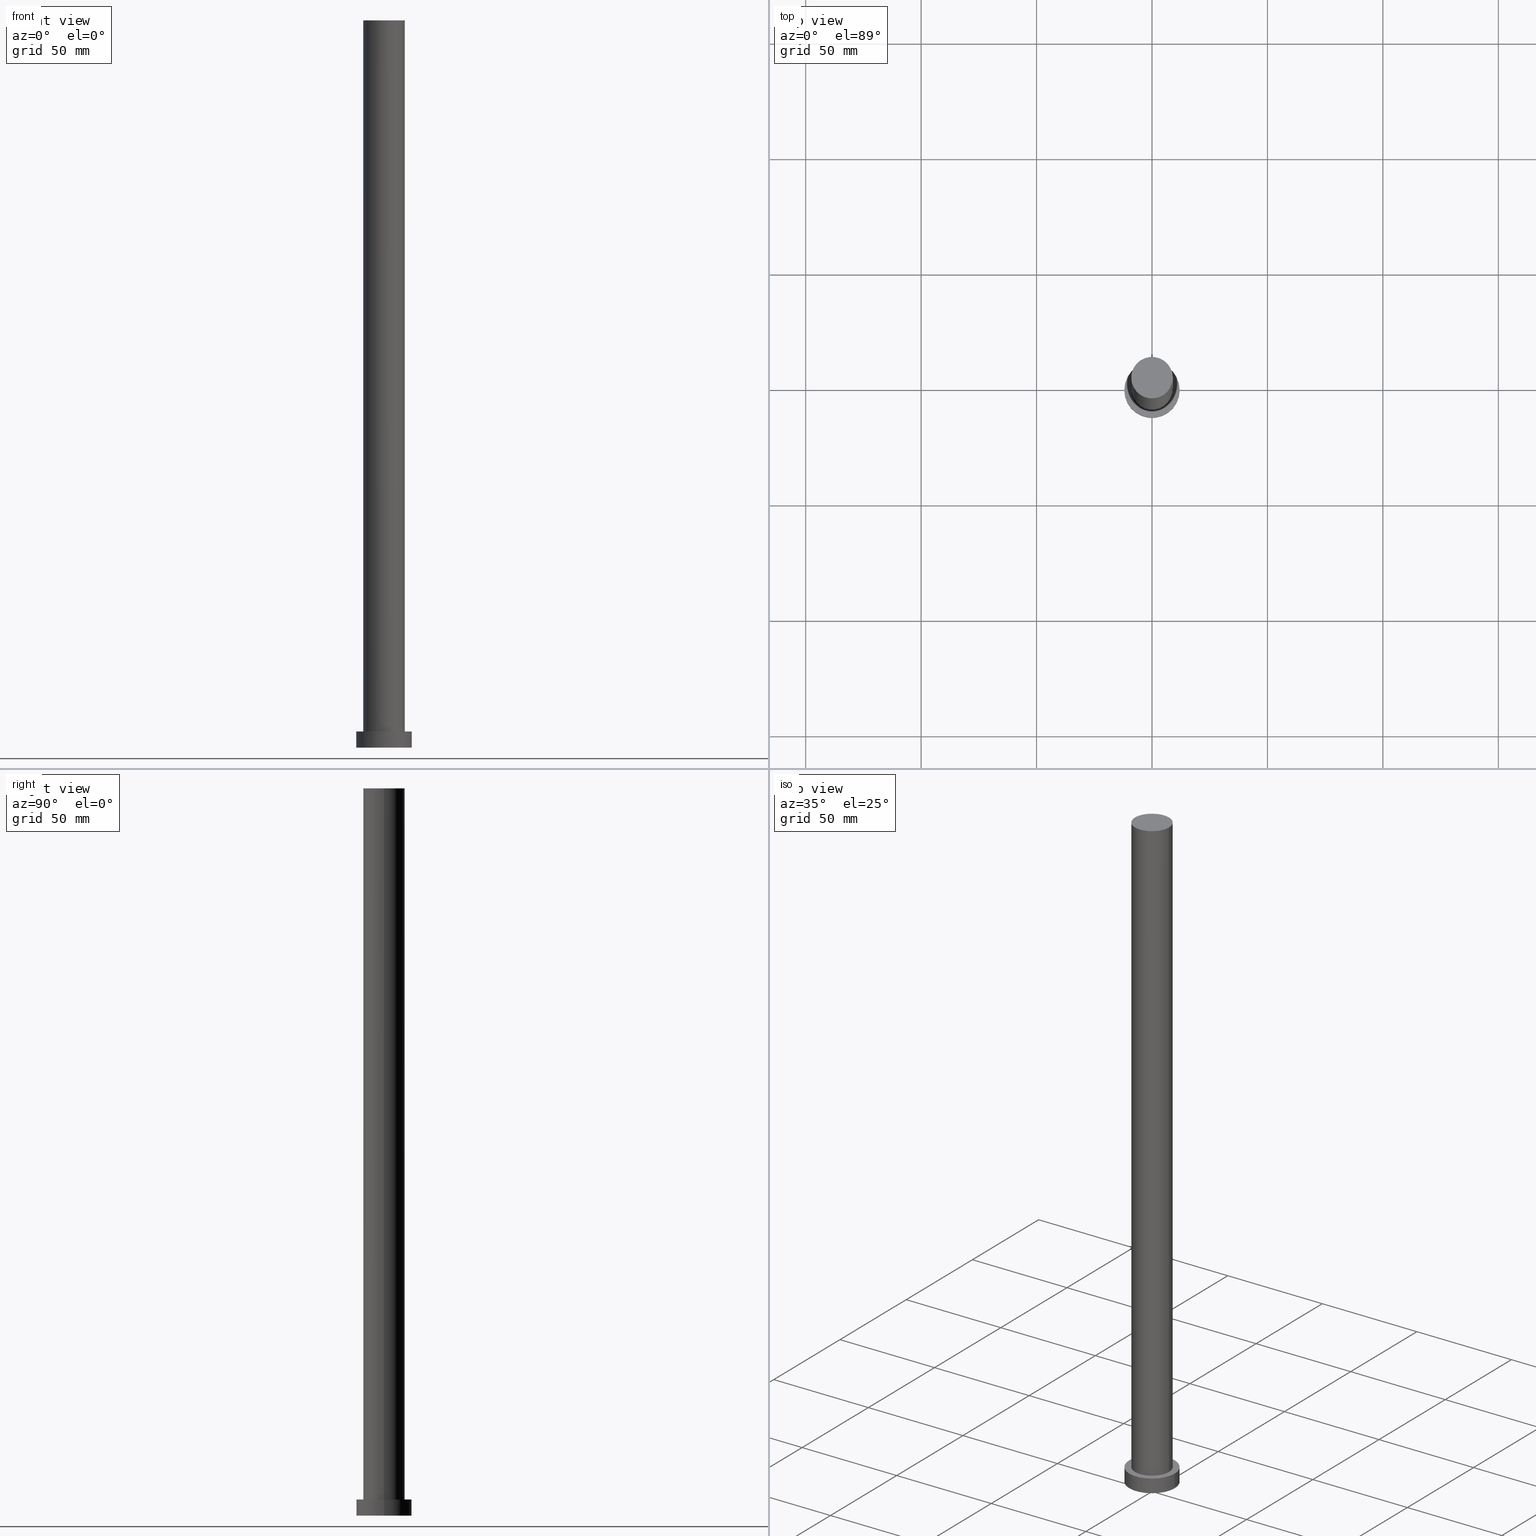
[diagram: canonical four-view strip — front | top / right | iso, engineering-drawing reading convention]
A machine part, canonical four-view strip (front | top / right | iso — engineering-drawing reading convention). The complete STEP part file that produces these views, byte-faithful:
ISO-10303-21;
HEADER;
FILE_DESCRIPTION (( 'STEP AP203' ),
    '1' );
FILE_NAME ('8282.STEP',
    '2023-02-13T09:18:46',
    ( '' ),
    ( '' ),
    'SwSTEP 2.0',
    'SolidWorks 2019',
    '' );
FILE_SCHEMA (( 'CONFIG_CONTROL_DESIGN' ));
ENDSEC;

DATA;
#1 = VECTOR ( 'NONE', #111, 1000.000000000000000 ) ;
#2 = APPLICATION_PROTOCOL_DEFINITION ( 'international standard', 'config_control_design', 1994, #140 ) ;
#3 = SECURITY_CLASSIFICATION_LEVEL ( 'unclassified' ) ;
#4 = CLOSED_SHELL ( 'NONE', ( #105, #221, #97, #59, #155, #231, #64 ) ) ;
#5 = APPROVAL_ROLE ( '' ) ;
#6 = PERSON_AND_ORGANIZATION_ROLE ( 'design_supplier' ) ;
#7 = AXIS2_PLACEMENT_3D ( 'NONE', #134, #236, #53 ) ;
#8 = ORIENTED_EDGE ( 'NONE', *, *, #144, .F. ) ;
#9 = EDGE_CURVE ( 'NONE', #66, #103, #171, .T. ) ;
#10 = ORIENTED_EDGE ( 'NONE', *, *, #144, .T. ) ;
#11 = EDGE_CURVE ( 'NONE', #82, #204, #241, .T. ) ;
#12 = VERTEX_POINT ( 'NONE', #28 ) ;
#13 = CARTESIAN_POINT ( 'NONE',  ( 12.00000000000000178, 1.469576158976824144E-15, 7.000000000000000000 ) ) ;
#14 = DIRECTION ( 'NONE',  ( -0.000000000000000000, -0.000000000000000000, -1.000000000000000000 ) ) ;
#15 = CIRCLE ( 'NONE', #199, 9.000000000000000000 ) ;
#16 = CARTESIAN_POINT ( 'NONE',  ( 0.000000000000000000, 0.000000000000000000, 7.000000000000000000 ) ) ;
#17 = CARTESIAN_POINT ( 'NONE',  ( -12.00000000000000178, 0.000000000000000000, 7.000000000000000000 ) ) ;
#18 = MECHANICAL_CONTEXT ( 'NONE', #124, 'mechanical' ) ;
#19 = SECURITY_CLASSIFICATION ( '', '', #3 ) ;
#20 = PERSON_AND_ORGANIZATION ( #187, #159 ) ;
#21 = CALENDAR_DATE ( 2023, 13, 2 ) ;
#22 = APPROVAL_ROLE ( '' ) ;
#23 = DIRECTION ( 'NONE',  ( 1.000000000000000000, 0.000000000000000000, 0.000000000000000000 ) ) ;
#24 = EDGE_LOOP ( 'NONE', ( #101, #122, #185, #166 ) ) ;
#25 = ORIENTED_EDGE ( 'NONE', *, *, #139, .T. ) ;
#26 = ORIENTED_EDGE ( 'NONE', *, *, #235, .F. ) ;
#27 = CIRCLE ( 'NONE', #33, 9.000000000000000000 ) ;
#28 = CARTESIAN_POINT ( 'NONE',  ( 12.00000000000000178, 1.469576158976824144E-15, 7.000000000000000000 ) ) ;
#29 = CARTESIAN_POINT ( 'NONE',  ( -9.000000000000000000, 0.000000000000000000, 7.000000000000000000 ) ) ;
#30 = CYLINDRICAL_SURFACE ( 'NONE', #174, 9.000000000000000000 ) ;
#31 = FACE_OUTER_BOUND ( 'NONE', #62, .T. ) ;
#32 = CARTESIAN_POINT ( 'NONE',  ( 0.000000000000000000, 0.000000000000000000, 0.000000000000000000 ) ) ;
#33 = AXIS2_PLACEMENT_3D ( 'NONE', #213, #252, #69 ) ;
#34 = DIRECTION ( 'NONE',  ( 0.000000000000000000, 0.000000000000000000, 1.000000000000000000 ) ) ;
#35 = CYLINDRICAL_SURFACE ( 'NONE', #138, 12.00000000000000178 ) ;
#36 = CC_DESIGN_PERSON_AND_ORGANIZATION_ASSIGNMENT ( #75, #114, ( #162 ) ) ;
#37 = DATE_AND_TIME ( #141, #217 ) ;
#38 = LOCAL_TIME ( 10, 18, 46.00000000000000000, #41 ) ;
#39 = COORDINATED_UNIVERSAL_TIME_OFFSET ( 1, 0, .AHEAD. ) ;
#40 = CIRCLE ( 'NONE', #104, 12.00000000000000178 ) ;
#41 = COORDINATED_UNIVERSAL_TIME_OFFSET ( 1, 0, .AHEAD. ) ;
#42 = VERTEX_POINT ( 'NONE', #243 ) ;
#43 = ORIENTED_EDGE ( 'NONE', *, *, #11, .F. ) ;
#44 = VECTOR ( 'NONE', #51, 1000.000000000000000 ) ;
#45 = EDGE_LOOP ( 'NONE', ( #247, #181, #182, #225 ) ) ;
#46 = DIRECTION ( 'NONE',  ( 0.000000000000000000, 0.000000000000000000, 1.000000000000000000 ) ) ;
#47 = DIRECTION ( 'NONE',  ( 1.000000000000000000, 0.000000000000000000, 0.000000000000000000 ) ) ;
#48 = CARTESIAN_POINT ( 'NONE',  ( 0.000000000000000000, 0.000000000000000000, 7.000000000000000000 ) ) ;
#49 = EDGE_CURVE ( 'NONE', #84, #205, #15, .T. ) ;
#50 = CARTESIAN_POINT ( 'NONE',  ( 9.000000000000000000, 1.102182119232617714E-15, 315.0000000000000000 ) ) ;
#51 = DIRECTION ( 'NONE',  ( -0.000000000000000000, -0.000000000000000000, -1.000000000000000000 ) ) ;
#52 = DIRECTION ( 'NONE',  ( -1.000000000000000000, 0.000000000000000000, 0.000000000000000000 ) ) ;
#53 = DIRECTION ( 'NONE',  ( 1.000000000000000000, 0.000000000000000000, 0.000000000000000000 ) ) ;
#54 = PLANE ( 'NONE',  #222 ) ;
#55 = APPROVAL ( #240, 'NEUR�EN�' ) ;
#56 = DATE_AND_TIME ( #223, #226 ) ;
#57 = COORDINATED_UNIVERSAL_TIME_OFFSET ( 1, 0, .AHEAD. ) ;
#58 = DATE_AND_TIME ( #21, #163 ) ;
#59 = ADVANCED_FACE ( 'NONE', ( #125, #244 ), #126, .T. ) ;
#60 = AXIS2_PLACEMENT_3D ( 'NONE', #72, #129, #108 ) ;
#61 = EDGE_LOOP ( 'NONE', ( #8, #227 ) ) ;
#62 = EDGE_LOOP ( 'NONE', ( #229, #25, #142, #120 ) ) ;
#63 = AXIS2_PLACEMENT_3D ( 'NONE', #251, #130, #210 ) ;
#64 = ADVANCED_FACE ( 'NONE', ( #148 ), #71, .T. ) ;
#65 = ORIENTED_EDGE ( 'NONE', *, *, #121, .T. ) ;
#66 = VERTEX_POINT ( 'NONE', #133 ) ;
#67 = LOCAL_TIME ( 10, 18, 46.00000000000000000, #57 ) ;
#68 = DIRECTION ( 'NONE',  ( 0.000000000000000000, 0.000000000000000000, 1.000000000000000000 ) ) ;
#69 = DIRECTION ( 'NONE',  ( 1.000000000000000000, 0.000000000000000000, 0.000000000000000000 ) ) ;
#70 = APPROVAL ( #161, 'NEUR�EN�' ) ;
#71 = PLANE ( 'NONE',  #180 ) ;
#72 = CARTESIAN_POINT ( 'NONE',  ( 0.000000000000000000, 0.000000000000000000, 7.000000000000000000 ) ) ;
#73 = CARTESIAN_POINT ( 'NONE',  ( -9.000000000000000000, 0.000000000000000000, 315.0000000000000000 ) ) ;
#74 = AXIS2_PLACEMENT_3D ( 'NONE', #232, #109, #234 ) ;
#75 = PERSON_AND_ORGANIZATION ( #187, #159 ) ;
#76 = APPROVAL_DATE_TIME ( #58, #70 ) ;
#77 = DATE_TIME_ROLE ( 'classification_date' ) ;
#78 = CC_DESIGN_APPROVAL ( #55, ( #95 ) ) ;
#79 = APPROVAL_DATE_TIME ( #37, #55 ) ;
#80 = ORIENTED_EDGE ( 'NONE', *, *, #206, .T. ) ;
#81 = CARTESIAN_POINT ( 'NONE',  ( 0.000000000000000000, 0.000000000000000000, 315.0000000000000000 ) ) ;
#82 = VERTEX_POINT ( 'NONE', #29 ) ;
#83 = CIRCLE ( 'NONE', #149, 12.00000000000000178 ) ;
#84 = VERTEX_POINT ( 'NONE', #50 ) ;
#85 = DIRECTION ( 'NONE',  ( 0.000000000000000000, 0.000000000000000000, 1.000000000000000000 ) ) ;
#86 = DIRECTION ( 'NONE',  ( 1.000000000000000000, 0.000000000000000000, 0.000000000000000000 ) ) ;
#87 = CIRCLE ( 'NONE', #60, 12.00000000000000178 ) ;
#88 = DIRECTION ( 'NONE',  ( 0.000000000000000000, 0.000000000000000000, 1.000000000000000000 ) ) ;
#89 = DIRECTION ( 'NONE',  ( 0.000000000000000000, 0.000000000000000000, 1.000000000000000000 ) ) ;
#90 = FACE_OUTER_BOUND ( 'NONE', #45, .T. ) ;
#91 = APPROVAL_PERSON_ORGANIZATION ( #157, #158, #93 ) ;
#92 = CARTESIAN_POINT ( 'NONE',  ( 0.000000000000000000, 0.000000000000000000, 315.0000000000000000 ) ) ;
#93 = APPROVAL_ROLE ( '' ) ;
#94 = CALENDAR_DATE ( 2023, 13, 2 ) ;
#95 = PRODUCT_DEFINITION_FORMATION_WITH_SPECIFIED_SOURCE ( 'LIBOVOLN�', '', #162, .NOT_KNOWN. ) ;
#96 = DATE_AND_TIME ( #94, #67 ) ;
#97 = ADVANCED_FACE ( 'NONE', ( #169 ), #107, .T. ) ;
#98 = PERSON_AND_ORGANIZATION ( #187, #159 ) ;
#99 = CARTESIAN_POINT ( 'NONE',  ( 0.000000000000000000, 0.000000000000000000, 7.000000000000000000 ) ) ;
#100 = APPROVAL_PERSON_ORGANIZATION ( #216, #70, #22 ) ;
#101 = ORIENTED_EDGE ( 'NONE', *, *, #139, .F. ) ;
#102 = ORIENTED_EDGE ( 'NONE', *, *, #235, .T. ) ;
#103 = VERTEX_POINT ( 'NONE', #152 ) ;
#104 = AXIS2_PLACEMENT_3D ( 'NONE', #48, #128, #188 ) ;
#105 = ADVANCED_FACE ( 'NONE', ( #31 ), #168, .T. ) ;
#106 = EDGE_CURVE ( 'NONE', #204, #82, #202, .T. ) ;
#107 = CYLINDRICAL_SURFACE ( 'NONE', #63, 12.00000000000000178 ) ;
#108 = DIRECTION ( 'NONE',  ( 1.000000000000000000, 0.000000000000000000, 0.000000000000000000 ) ) ;
#109 = DIRECTION ( 'NONE',  ( -0.000000000000000000, -0.000000000000000000, -1.000000000000000000 ) ) ;
#110 = FACE_OUTER_BOUND ( 'NONE', #61, .T. ) ;
#111 = DIRECTION ( 'NONE',  ( -0.000000000000000000, -0.000000000000000000, -1.000000000000000000 ) ) ;
#112 = MANIFOLD_SOLID_BREP ( 'P�idat vysunut�m3', #4 ) ;
#113 = DIRECTION ( 'NONE',  ( -0.000000000000000000, -0.000000000000000000, -1.000000000000000000 ) ) ;
#114 = PERSON_AND_ORGANIZATION_ROLE ( 'design_owner' ) ;
#115 =( GEOMETRIC_REPRESENTATION_CONTEXT ( 3 ) GLOBAL_UNCERTAINTY_ASSIGNED_CONTEXT ( ( #186 ) ) GLOBAL_UNIT_ASSIGNED_CONTEXT ( ( #131, #254, #136 ) ) REPRESENTATION_CONTEXT ( 'NONE', 'WORKASPACE' ) );
#116 = COORDINATED_UNIVERSAL_TIME_OFFSET ( 1, 0, .AHEAD. ) ;
#117 = CC_DESIGN_DATE_AND_TIME_ASSIGNMENT ( #195, #137, ( #200 ) ) ;
#118 = PERSON_AND_ORGANIZATION ( #187, #159 ) ;
#119 = PERSON_AND_ORGANIZATION_ROLE ( 'classification_officer' ) ;
#120 = ORIENTED_EDGE ( 'NONE', *, *, #196, .F. ) ;
#121 = EDGE_CURVE ( 'NONE', #12, #42, #40, .T. ) ;
#122 = ORIENTED_EDGE ( 'NONE', *, *, #224, .F. ) ;
#123 = AXIS2_PLACEMENT_3D ( 'NONE', #190, #88, #248 ) ;
#124 = APPLICATION_CONTEXT ( 'configuration controlled 3d designs of mechanical parts and assemblies' ) ;
#125 = FACE_BOUND ( 'NONE', #145, .T. ) ;
#126 = PLANE ( 'NONE',  #184 ) ;
#127 = CC_DESIGN_PERSON_AND_ORGANIZATION_ASSIGNMENT ( #98, #6, ( #95 ) ) ;
#128 = DIRECTION ( 'NONE',  ( 0.000000000000000000, 0.000000000000000000, 1.000000000000000000 ) ) ;
#129 = DIRECTION ( 'NONE',  ( 0.000000000000000000, 0.000000000000000000, 1.000000000000000000 ) ) ;
#130 = DIRECTION ( 'NONE',  ( -0.000000000000000000, -0.000000000000000000, -1.000000000000000000 ) ) ;
#131 =( LENGTH_UNIT ( ) NAMED_UNIT ( * ) SI_UNIT ( .MILLI., .METRE. ) );
#132 = EDGE_CURVE ( 'NONE', #12, #66, #172, .T. ) ;
#133 = CARTESIAN_POINT ( 'NONE',  ( 12.00000000000000178, 1.469576158976824144E-15, 0.000000000000000000 ) ) ;
#134 = CARTESIAN_POINT ( 'NONE',  ( 0.000000000000000000, 0.000000000000000000, 0.000000000000000000 ) ) ;
#135 = CC_DESIGN_SECURITY_CLASSIFICATION ( #19, ( #95 ) ) ;
#136 =( NAMED_UNIT ( * ) SI_UNIT ( $, .STERADIAN. ) SOLID_ANGLE_UNIT ( ) );
#137 = DATE_TIME_ROLE ( 'creation_date' ) ;
#138 = AXIS2_PLACEMENT_3D ( 'NONE', #16, #113, #52 ) ;
#139 = EDGE_CURVE ( 'NONE', #84, #204, #212, .T. ) ;
#140 = APPLICATION_CONTEXT ( 'configuration controlled 3d designs of mechanical parts and assemblies' ) ;
#141 = CALENDAR_DATE ( 2023, 13, 2 ) ;
#142 = ORIENTED_EDGE ( 'NONE', *, *, #106, .T. ) ;
#143 = EDGE_LOOP ( 'NONE', ( #102, #65 ) ) ;
#144 = EDGE_CURVE ( 'NONE', #103, #66, #83, .T. ) ;
#145 = EDGE_LOOP ( 'NONE', ( #43, #146 ) ) ;
#146 = ORIENTED_EDGE ( 'NONE', *, *, #106, .F. ) ;
#147 = DIRECTION ( 'NONE',  ( 1.000000000000000000, 0.000000000000000000, 0.000000000000000000 ) ) ;
#148 = FACE_OUTER_BOUND ( 'NONE', #203, .T. ) ;
#149 = AXIS2_PLACEMENT_3D ( 'NONE', #32, #89, #86 ) ;
#150 = CARTESIAN_POINT ( 'NONE',  ( 0.000000000000000000, 0.000000000000000000, 7.000000000000000000 ) ) ;
#151 = LINE ( 'NONE', #17, #1 ) ;
#152 = CARTESIAN_POINT ( 'NONE',  ( -12.00000000000000178, 0.000000000000000000, 0.000000000000000000 ) ) ;
#153 = DIRECTION ( 'NONE',  ( -1.000000000000000000, 0.000000000000000000, 0.000000000000000000 ) ) ;
#154 = AXIS2_PLACEMENT_3D ( 'NONE', #99, #164, #147 ) ;
#155 = ADVANCED_FACE ( 'NONE', ( #110 ), #54, .F. ) ;
#156 = APPLICATION_PROTOCOL_DEFINITION ( 'international standard', 'config_control_design', 1994, #124 ) ;
#157 = PERSON_AND_ORGANIZATION ( #187, #159 ) ;
#158 = APPROVAL ( #237, 'NEUR�EN�' ) ;
#159 = ORGANIZATION ( 'NEUR�EN�', 'NEUR�EN�', '' ) ;
#160 = PRODUCT_DEFINITION_SHAPE ( 'NONE', 'NONE',  #200 ) ;
#161 = APPROVAL_STATUS ( 'not_yet_approved' ) ;
#162 = PRODUCT ( '8282', '8282', '', ( #18 ) ) ;
#163 = LOCAL_TIME ( 10, 18, 46.00000000000000000, #39 ) ;
#164 = DIRECTION ( 'NONE',  ( 0.000000000000000000, 0.000000000000000000, 1.000000000000000000 ) ) ;
#165 = DIRECTION ( 'NONE',  ( 0.000000000000000000, 0.000000000000000000, 1.000000000000000000 ) ) ;
#166 = ORIENTED_EDGE ( 'NONE', *, *, #11, .T. ) ;
#167 = ADVANCED_BREP_SHAPE_REPRESENTATION ( '8282', ( #112, #7 ), #115 ) ;
#168 = CYLINDRICAL_SURFACE ( 'NONE', #74, 9.000000000000000000 ) ;
#169 = FACE_OUTER_BOUND ( 'NONE', #201, .T. ) ;
#170 = LINE ( 'NONE', #208, #214 ) ;
#171 = CIRCLE ( 'NONE', #238, 12.00000000000000178 ) ;
#172 = LINE ( 'NONE', #13, #44 ) ;
#173 = CARTESIAN_POINT ( 'NONE',  ( 0.000000000000000000, 0.000000000000000000, 0.000000000000000000 ) ) ;
#174 = AXIS2_PLACEMENT_3D ( 'NONE', #92, #255, #153 ) ;
#175 = CC_DESIGN_PERSON_AND_ORGANIZATION_ASSIGNMENT ( #179, #218, ( #95 ) ) ;
#176 = APPROVAL_DATE_TIME ( #96, #158 ) ;
#177 = CC_DESIGN_APPROVAL ( #158, ( #200 ) ) ;
#178 = CALENDAR_DATE ( 2023, 13, 2 ) ;
#179 = PERSON_AND_ORGANIZATION ( #187, #159 ) ;
#180 = AXIS2_PLACEMENT_3D ( 'NONE', #230, #68, #207 ) ;
#181 = ORIENTED_EDGE ( 'NONE', *, *, #132, .T. ) ;
#182 = ORIENTED_EDGE ( 'NONE', *, *, #9, .T. ) ;
#183 = ORIENTED_EDGE ( 'NONE', *, *, #49, .T. ) ;
#184 = AXIS2_PLACEMENT_3D ( 'NONE', #150, #85, #253 ) ;
#185 = ORIENTED_EDGE ( 'NONE', *, *, #196, .T. ) ;
#186 = UNCERTAINTY_MEASURE_WITH_UNIT (LENGTH_MEASURE( 1.000000000000000082E-05 ), #131, 'distance_accuracy_value', 'NONE');
#187 = PERSON ( 'NEUR�EN�', 'NEUR�EN�', 'NEUR�EN�', ('NEUR�EN�'), ('NEUR�EN�'), ('NEUR�EN�') ) ;
#188 = DIRECTION ( 'NONE',  ( 1.000000000000000000, 0.000000000000000000, 0.000000000000000000 ) ) ;
#189 = DIRECTION ( 'NONE',  ( -0.000000000000000000, -0.000000000000000000, -1.000000000000000000 ) ) ;
#190 = CARTESIAN_POINT ( 'NONE',  ( 0.000000000000000000, 0.000000000000000000, 7.000000000000000000 ) ) ;
#191 = CC_DESIGN_PERSON_AND_ORGANIZATION_ASSIGNMENT ( #220, #119, ( #19 ) ) ;
#192 = CARTESIAN_POINT ( 'NONE',  ( 9.000000000000000000, 1.102182119232617714E-15, 7.000000000000000000 ) ) ;
#193 = APPROVAL_PERSON_ORGANIZATION ( #20, #55, #5 ) ;
#194 = VECTOR ( 'NONE', #189, 1000.000000000000000 ) ;
#195 = DATE_AND_TIME ( #178, #38 ) ;
#196 = EDGE_CURVE ( 'NONE', #205, #82, #170, .T. ) ;
#197 = SHAPE_DEFINITION_REPRESENTATION ( #160, #167 ) ;
#198 = PERSON_AND_ORGANIZATION_ROLE ( 'creator' ) ;
#199 = AXIS2_PLACEMENT_3D ( 'NONE', #81, #165, #47 ) ;
#200 = PRODUCT_DEFINITION ( 'NEZN�M�', '', #95, #250 ) ;
#201 = EDGE_LOOP ( 'NONE', ( #242, #26, #80, #10 ) ) ;
#202 = CIRCLE ( 'NONE', #123, 9.000000000000000000 ) ;
#203 = EDGE_LOOP ( 'NONE', ( #246, #183 ) ) ;
#204 = VERTEX_POINT ( 'NONE', #192 ) ;
#205 = VERTEX_POINT ( 'NONE', #73 ) ;
#206 = EDGE_CURVE ( 'NONE', #42, #103, #151, .T. ) ;
#207 = DIRECTION ( 'NONE',  ( 1.000000000000000000, 0.000000000000000000, -0.000000000000000000 ) ) ;
#208 = CARTESIAN_POINT ( 'NONE',  ( -9.000000000000000000, 0.000000000000000000, 315.0000000000000000 ) ) ;
#209 = PRODUCT_RELATED_PRODUCT_CATEGORY ( 'detail', '', ( #162 ) ) ;
#210 = DIRECTION ( 'NONE',  ( -1.000000000000000000, 0.000000000000000000, 0.000000000000000000 ) ) ;
#211 = CARTESIAN_POINT ( 'NONE',  ( 9.000000000000000000, 1.102182119232617714E-15, 315.0000000000000000 ) ) ;
#212 = LINE ( 'NONE', #211, #194 ) ;
#213 = CARTESIAN_POINT ( 'NONE',  ( 0.000000000000000000, 0.000000000000000000, 315.0000000000000000 ) ) ;
#214 = VECTOR ( 'NONE', #14, 1000.000000000000000 ) ;
#215 = DIRECTION ( 'NONE',  ( 1.000000000000000000, 0.000000000000000000, -0.000000000000000000 ) ) ;
#216 = PERSON_AND_ORGANIZATION ( #187, #159 ) ;
#217 = LOCAL_TIME ( 10, 18, 46.00000000000000000, #219 ) ;
#218 = PERSON_AND_ORGANIZATION_ROLE ( 'creator' ) ;
#219 = COORDINATED_UNIVERSAL_TIME_OFFSET ( 1, 0, .AHEAD. ) ;
#220 = PERSON_AND_ORGANIZATION ( #187, #159 ) ;
#221 = ADVANCED_FACE ( 'NONE', ( #90 ), #35, .T. ) ;
#222 = AXIS2_PLACEMENT_3D ( 'NONE', #173, #34, #215 ) ;
#223 = CALENDAR_DATE ( 2023, 13, 2 ) ;
#224 = EDGE_CURVE ( 'NONE', #205, #84, #27, .T. ) ;
#225 = ORIENTED_EDGE ( 'NONE', *, *, #206, .F. ) ;
#226 = LOCAL_TIME ( 10, 18, 46.00000000000000000, #116 ) ;
#227 = ORIENTED_EDGE ( 'NONE', *, *, #9, .F. ) ;
#228 = CARTESIAN_POINT ( 'NONE',  ( 0.000000000000000000, 0.000000000000000000, 0.000000000000000000 ) ) ;
#229 = ORIENTED_EDGE ( 'NONE', *, *, #49, .F. ) ;
#230 = CARTESIAN_POINT ( 'NONE',  ( 0.000000000000000000, 0.000000000000000000, 315.0000000000000000 ) ) ;
#231 = ADVANCED_FACE ( 'NONE', ( #233 ), #30, .T. ) ;
#232 = CARTESIAN_POINT ( 'NONE',  ( 0.000000000000000000, 0.000000000000000000, 315.0000000000000000 ) ) ;
#233 = FACE_OUTER_BOUND ( 'NONE', #24, .T. ) ;
#234 = DIRECTION ( 'NONE',  ( -1.000000000000000000, 0.000000000000000000, 0.000000000000000000 ) ) ;
#235 = EDGE_CURVE ( 'NONE', #42, #12, #87, .T. ) ;
#236 = DIRECTION ( 'NONE',  ( 0.000000000000000000, 0.000000000000000000, 1.000000000000000000 ) ) ;
#237 = APPROVAL_STATUS ( 'not_yet_approved' ) ;
#238 = AXIS2_PLACEMENT_3D ( 'NONE', #228, #46, #23 ) ;
#239 = CC_DESIGN_PERSON_AND_ORGANIZATION_ASSIGNMENT ( #118, #198, ( #200 ) ) ;
#240 = APPROVAL_STATUS ( 'not_yet_approved' ) ;
#241 = CIRCLE ( 'NONE', #154, 9.000000000000000000 ) ;
#242 = ORIENTED_EDGE ( 'NONE', *, *, #132, .F. ) ;
#243 = CARTESIAN_POINT ( 'NONE',  ( -12.00000000000000178, 0.000000000000000000, 7.000000000000000000 ) ) ;
#244 = FACE_OUTER_BOUND ( 'NONE', #143, .T. ) ;
#245 = CC_DESIGN_APPROVAL ( #70, ( #19 ) ) ;
#246 = ORIENTED_EDGE ( 'NONE', *, *, #224, .T. ) ;
#247 = ORIENTED_EDGE ( 'NONE', *, *, #121, .F. ) ;
#248 = DIRECTION ( 'NONE',  ( 1.000000000000000000, 0.000000000000000000, 0.000000000000000000 ) ) ;
#249 = CC_DESIGN_DATE_AND_TIME_ASSIGNMENT ( #56, #77, ( #19 ) ) ;
#250 = DESIGN_CONTEXT ( 'detailed design', #140, 'design' ) ;
#251 = CARTESIAN_POINT ( 'NONE',  ( 0.000000000000000000, 0.000000000000000000, 7.000000000000000000 ) ) ;
#252 = DIRECTION ( 'NONE',  ( 0.000000000000000000, 0.000000000000000000, 1.000000000000000000 ) ) ;
#253 = DIRECTION ( 'NONE',  ( 1.000000000000000000, 0.000000000000000000, -0.000000000000000000 ) ) ;
#254 =( NAMED_UNIT ( * ) PLANE_ANGLE_UNIT ( ) SI_UNIT ( $, .RADIAN. ) );
#255 = DIRECTION ( 'NONE',  ( -0.000000000000000000, -0.000000000000000000, -1.000000000000000000 ) ) ;
ENDSEC;
END-ISO-10303-21;
